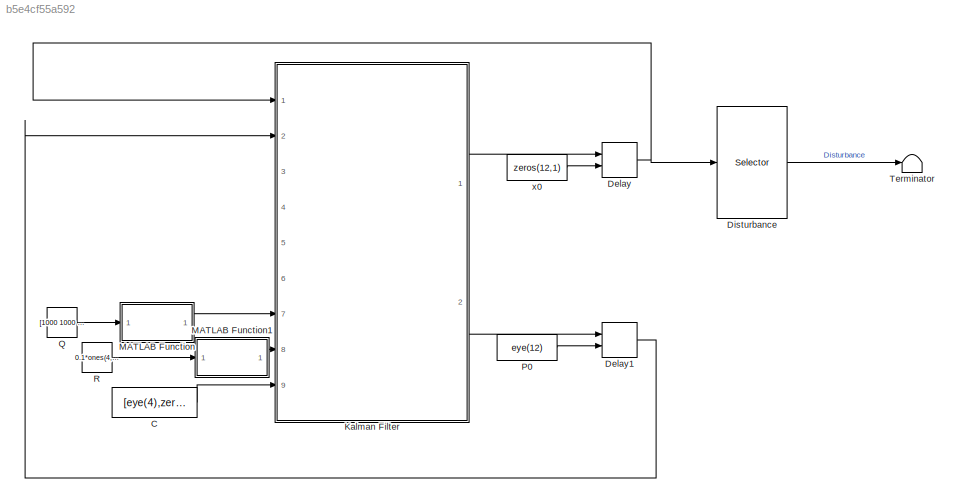
MODEL slx_b5e4cf55a592
KIND model
CONFIG AbsTol = auto
CONFIG EnableMultiTasking = off
CONFIG FixedStep = 0.001
CONFIG MaxStep = auto
CONFIG MinStep = auto
CONFIG PostLoadFcn = , if any(exist('dsrtsu_mdlpostloadfcn', 'file') == [2, 3, 6]), try dsrtsu_mdlpostloadfcn('Execute', bdroot); catch fprintf('Error in PostLoadFcn (dsrtsu_mdlpostloadfcn) for model "%s":\n %s\n', bdroot, lasterr); end, end, \n
CONFIG RelTol = 1e-3
CONFIG SampleTimeConstraint = Unconstrained
CONFIG Solver = ode1
CONFIG SolverName = ode1
CONFIG StartTime = 0.0
CONFIG StopTime = Inf
BLOCK [Constant] C
  Value = [eye(4),zeros(4,8)]
BLOCK [Delay] Delay
  DelayLength = 1
  InitialConditionSource = Input port
  InputPortMap = u0,p4
  Ports = [2, 1]
BLOCK [Delay] Delay1
  DelayLength = 1
  InitialConditionSource = Input port
  InputPortMap = u0,p4
  Ports = [2, 1]
BLOCK [Selector] Disturbance
  IndexOptions = Index vector (dialog)
  Indices = 9:12
  InputPortWidth = 12
  OutputSizes = 1
  Ports = [1, 1]
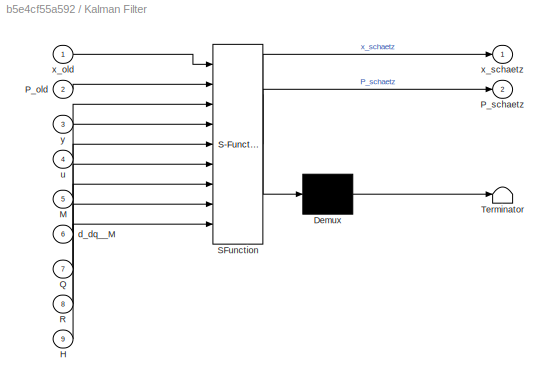
BLOCK [SubSystem] Kalman Filter
  ErrorFcn = Stateflow.Translate.translate
  PermitHierarchicalResolution = ExplicitOnly
  Ports = [9, 2]
  RequestExecContextInheritance = off
  SFBlockType = MATLAB Function
  TreatAsAtomicUnit = on
BLOCK [Demux] Kalman Filter/ Demux 
  Outputs = 1
  Ports = [1, 1]
BLOCK [S-Function] Kalman Filter/ SFunction 
  EnableBusSupport = on
  FunctionName = sf_sfun
  PortCounts = [9 3]
  Ports = [9, 3]
  SFcnIsStateOwnerBlock = off
  SFunctionDeploymentMode = off
  Tag = Stateflow S-Function Scara 81
BLOCK [Terminator] Kalman Filter/ Terminator 
BLOCK [Inport] Kalman Filter/H
  IconDisplay = Port number
  Port = 9
BLOCK [Inport] Kalman Filter/M
  IconDisplay = Port number
  Port = 5
BLOCK [Inport] Kalman Filter/P_old
  IconDisplay = Port number
  Port = 2
BLOCK [Outport] Kalman Filter/P_schaetz
  IconDisplay = Port number
  Port = 2
BLOCK [Inport] Kalman Filter/Q
  IconDisplay = Port number
  Port = 7
BLOCK [Inport] Kalman Filter/R
  IconDisplay = Port number
  Port = 8
BLOCK [Inport] Kalman Filter/d_dq__M
  IconDisplay = Port number
  Port = 6
BLOCK [Inport] Kalman Filter/u
  IconDisplay = Port number
  Port = 4
BLOCK [Inport] Kalman Filter/x_old
  IconDisplay = Port number
BLOCK [Outport] Kalman Filter/x_schaetz
  IconDisplay = Port number
BLOCK [Inport] Kalman Filter/y
  IconDisplay = Port number
  Port = 3
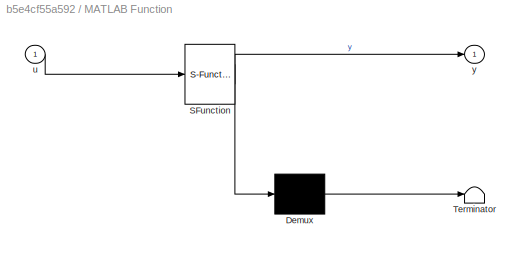
BLOCK [SubSystem] MATLAB Function
  ErrorFcn = Stateflow.Translate.translate
  PermitHierarchicalResolution = ExplicitOnly
  Ports = [1, 1]
  RequestExecContextInheritance = off
  SFBlockType = MATLAB Function
  TreatAsAtomicUnit = on
BLOCK [Demux] MATLAB Function/ Demux 
  Outputs = 1
  Ports = [1, 1]
BLOCK [S-Function] MATLAB Function/ SFunction 
  EnableBusSupport = off
  FunctionName = sf_sfun
  PortCounts = [1 2]
  Ports = [1, 2]
  SFcnIsStateOwnerBlock = off
  SFunctionDeploymentMode = off
  Tag = Stateflow S-Function Scara 2
BLOCK [Terminator] MATLAB Function/ Terminator 
BLOCK [Inport] MATLAB Function/u
  IconDisplay = Port number
BLOCK [Outport] MATLAB Function/y
  IconDisplay = Port number
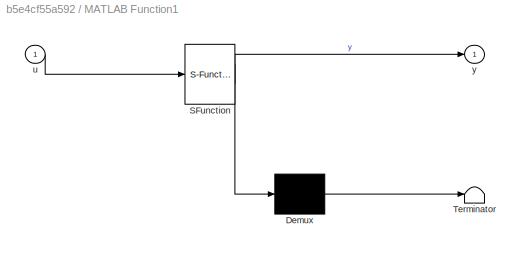
BLOCK [SubSystem] MATLAB Function1
  ErrorFcn = Stateflow.Translate.translate
  PermitHierarchicalResolution = ExplicitOnly
  Ports = [1, 1]
  RequestExecContextInheritance = off
  SFBlockType = MATLAB Function
  TreatAsAtomicUnit = on
BLOCK [Demux] MATLAB Function1/ Demux 
  Outputs = 1
  Ports = [1, 1]
BLOCK [S-Function] MATLAB Function1/ SFunction 
  EnableBusSupport = off
  FunctionName = sf_sfun
  PortCounts = [1 2]
  Ports = [1, 2]
  SFcnIsStateOwnerBlock = off
  SFunctionDeploymentMode = off
  Tag = Stateflow S-Function Scara 1
BLOCK [Terminator] MATLAB Function1/ Terminator 
BLOCK [Inport] MATLAB Function1/u
  IconDisplay = Port number
BLOCK [Outport] MATLAB Function1/y
  IconDisplay = Port number
BLOCK [Constant] P0
  Value = eye(12)
BLOCK [Constant] Q
  Value = [1000 1000 1000 1000 1000 1000 1000 1000 1 1 1 1]
BLOCK [Constant] R
  Value = 0.1*ones(4,1)
BLOCK [Terminator] Terminator
BLOCK [Constant] x0
  Value = zeros(12,1)
LINE C:1 -> Kalman Filter:9
LINE Delay1:1 -> Kalman Filter:2
NET Delay:1 -> Disturbance:1, Kalman Filter:1
LINE Disturbance:1 -> Terminator:1
LINE Kalman Filter:1 -> Delay:1
LINE Kalman Filter:2 -> Delay1:1
LINE MATLAB Function1:1 -> Kalman Filter:8
LINE MATLAB Function:1 -> Kalman Filter:7
LINE P0:1 -> Delay1:2
LINE Q:1 -> MATLAB Function:1
LINE R:1 -> MATLAB Function1:1
LINE x0:1 -> Delay:2
note: NET lines group one-source signal fan-out (src -> all destinations, sorted); 1:1 wires keep LINE
CHART MATLAB Function1 states=1 transitions=1
  STATE_LABEL 'eML_blk_kernel()'
  STATE_LABEL 'SCRIPT:\nfunction y = makeDiag(u)\n\ny = diag(u);\n'
CHART MATLAB Function states=1 transitions=1
  STATE_LABEL 'eML_blk_kernel()'
  STATE_LABEL 'SCRIPT:\nfunction y = makeDiag(u)\n\ny = diag(u);\n'
CHART Kalman Filter states=1 transitions=1
  STATE_LABEL 'eML_blk_kernel()'
  STATE_LABEL 'SCRIPT:\nfunction [x_schaetz,P_schaetz] = fcn(x_old,P_old,y,u,M,d_dq__M,Q,R,H)\n%% @author <email>\n% Inputs:   x_old - last step observer state\n%            P_old - Covariance Noise\n%            y - Measurement\n%            u - Mechanical input, i.e. tau in the paper\n%            M - Intertia matrix\n%            d_dq__M - derivative of Intertia matrix\n%            Q - System noise\n%            R - M...<+837ch>'
